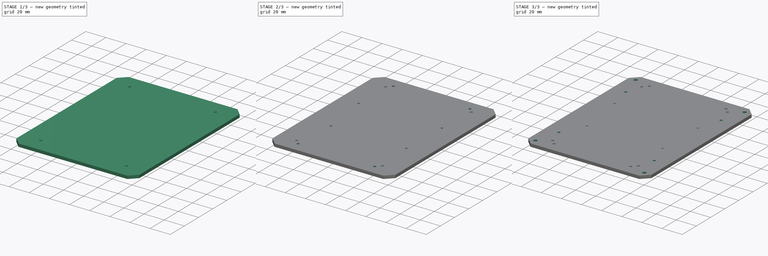
[diagram: build sequence overview — one tinted view per stage of 3, left to right]
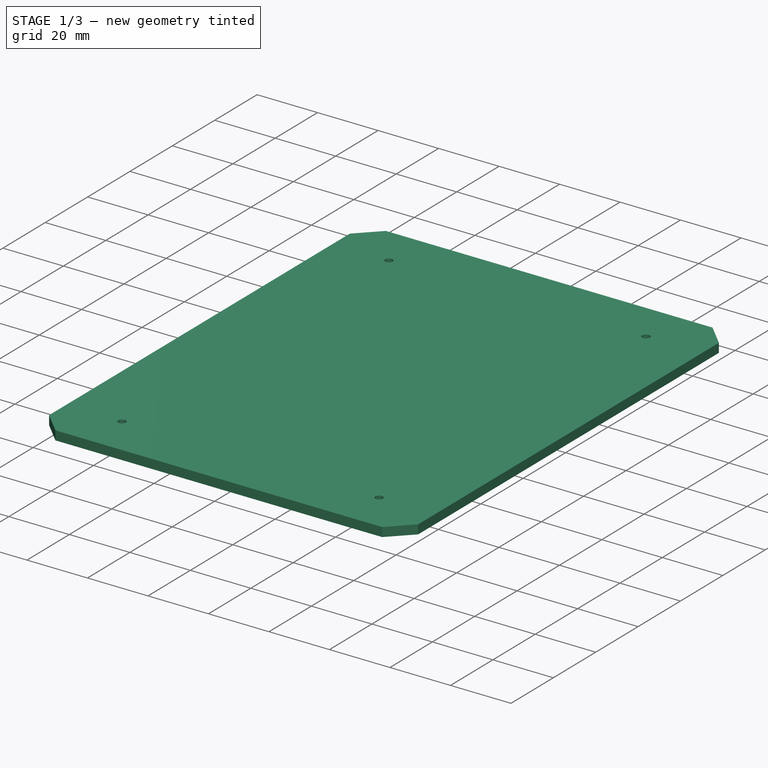
[diagram: stage 1 of 3 — iso view after this stage's code; geometry added in this stage tinted green]
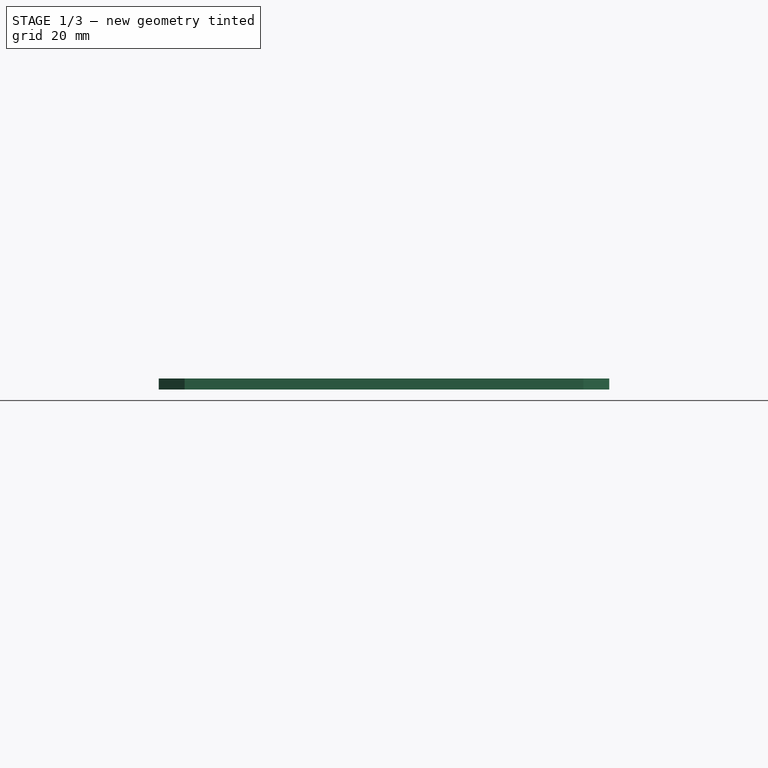
[diagram: stage 1 of 3 — front view after this stage's code; geometry added in this stage tinted green]
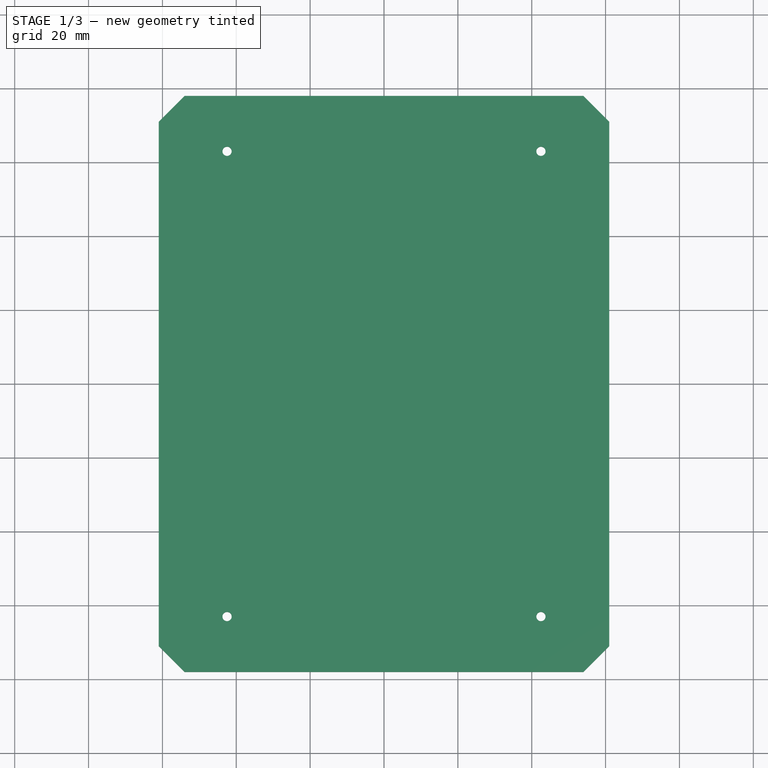
[diagram: stage 1 of 3 — top view after this stage's code; geometry added in this stage tinted green]
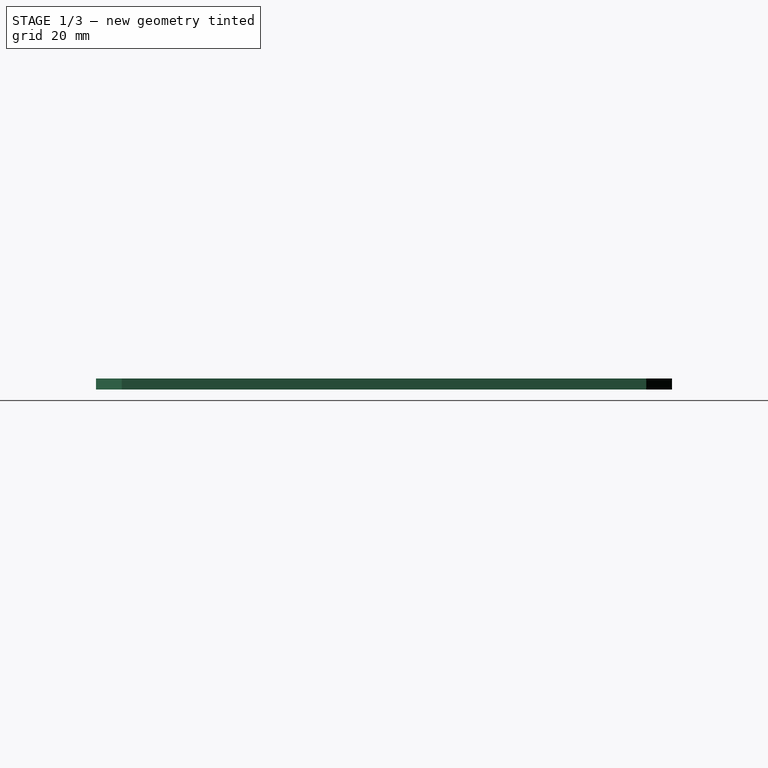
[diagram: stage 1 of 3 — right view after this stage's code; geometry added in this stage tinted green]
FCSTD DOCUMENT  (FreeCAD 0.17R13522 (Git))
Label: Corelia_0_Electronics_plate
License: All rights reserved
LicenseURL: http://en.wikipedia.org/wiki/All_rights_reserved
objects: Sketcher::SketchObject×6, PartDesign::Pocket×5, PartDesign::Pad×1, PartDesign::Body×1, TechDraw::DrawSVGTemplate×1, TechDraw::DrawViewPart×1, TechDraw::DrawPage×1
note: 19 computed .brp shape members not serialized (recipe doc carries the construction recipe); baked Part::Feature solids carry a one-line shape summary decoded from their .brp

FEATURE [Sketcher::SketchObject] Sketch
  MapMode = 5
  Support = -> [XY_Plane]
  sketch-geometry (8):
    g0: LineSegment StartX=-61 StartY=71 StartZ=0 EndX=-54 EndY=78 EndZ=0
    g1: LineSegment StartX=-54 StartY=78 StartZ=0 EndX=54 EndY=78 EndZ=0
    g2: LineSegment StartX=54 StartY=78 StartZ=0 EndX=61 EndY=71 EndZ=0
    g3: LineSegment StartX=61 StartY=71 StartZ=0 EndX=61 EndY=-71 EndZ=0
    g4: LineSegment StartX=61 StartY=-71 StartZ=0 EndX=54 EndY=-78 EndZ=0
    g5: LineSegment StartX=54 StartY=-78 StartZ=0 EndX=-54 EndY=-78 EndZ=0
    g6: LineSegment StartX=-54 StartY=-78 StartZ=0 EndX=-61 EndY=-71 EndZ=0
    g7: LineSegment StartX=-61 StartY=-71 StartZ=0 EndX=-61 EndY=71 EndZ=0
  constraints (24):
    c: Coincident(g0,g1)
    c: Horizontal(g1)
    c: Coincident(g1,g2)
    c: Coincident(g2,g3)
    c: Vertical(g3)
    c: Coincident(g3,g4)
    c: Coincident(g4,g5)
    c: Horizontal(g5)
    c: Coincident(g5,g6)
    c: Coincident(g6,g7)
    c: Coincident(g7,g0)
    c: Vertical(g7)
    c: Equal(g1,g5)
    c: Equal(g7,g3)
    c: Equal(g6,g4)
    c: Equal(g0,g2)
    c: Equal(g0,g6)
    c: Symmetric(g0,g6,g-1)
    c: Symmetric(g5,g0,g-1)
    c: DistanceY(g0,g0) = 7
    c: DistanceX(g0,g0) = 7
    c: DistanceX(g0,g2) = 122
    c: DistanceY(g5,g0) = 156
    c: DistanceX(g0) = -61
FEATURE [PartDesign::Pad] Pad
  Length = 3
  Length2 = 100
  Profile = -> Sketch
  Type = 0
FEATURE [Sketcher::SketchObject] Sketch001
  MapMode = 5
  Placement = pos=(0,0,3) rot=(0,0,1;0rad)
  Support = -> [Pad]
  sketch-geometry (8):
    g0: LineSegment [constr] StartX=-42.5 StartY=63 StartZ=0 EndX=42.5 EndY=63 EndZ=0
    g1: LineSegment [constr] StartX=42.5 StartY=63 StartZ=0 EndX=42.5 EndY=-63 EndZ=0
    g2: LineSegment [constr] StartX=42.5 StartY=-63 StartZ=0 EndX=-42.5 EndY=-63 EndZ=0
    g3: LineSegment [constr] StartX=-42.5 StartY=-63 StartZ=0 EndX=-42.5 EndY=63 EndZ=0
    g4: Circle CenterX=-42.5 CenterY=63 CenterZ=0 NormalX=0 NormalY=0 NormalZ=1 AngleXU=0 Radius=1.25
    g5: Circle CenterX=42.5 CenterY=63 CenterZ=0 NormalX=0 NormalY=0 NormalZ=1 AngleXU=0 Radius=1.25
    g6: Circle CenterX=-42.5 CenterY=-63 CenterZ=0 NormalX=0 NormalY=0 NormalZ=1 AngleXU=0 Radius=1.25
    g7: Circle CenterX=42.5 CenterY=-63 CenterZ=0 NormalX=0 NormalY=0 NormalZ=1 AngleXU=0 Radius=1.25
  constraints (20):
    c: Coincident(g0,g1)
    c: Coincident(g1,g2)
    c: Coincident(g2,g3)
    c: Coincident(g3,g0)
    c: Horizontal(g0)
    c: Horizontal(g2)
    c: Vertical(g1)
    c: Vertical(g3)
    c: Coincident(g4,g0)
    c: Coincident(g5,g0)
    c: Coincident(g6,g2)
    c: Coincident(g7,g1)
    c: Equal(g5,g4)
    c: Equal(g4,g6)
    c: Equal(g6,g7)
    c: Radius(g4) = 1.25
    c: Symmetric(g0,g2,g-1)
    c: Symmetric(g2,g1,g-2)
    c: DistanceY(g3,g3) = 126
    c: DistanceX(g0,g0) = 85
FEATURE [PartDesign::Pocket] Pocket  label="C0_Baseplate-holes"
  BaseFeature = -> Pad
  Length = 5
  Length2 = 100
  Profile = -> Sketch001
  Type = 1
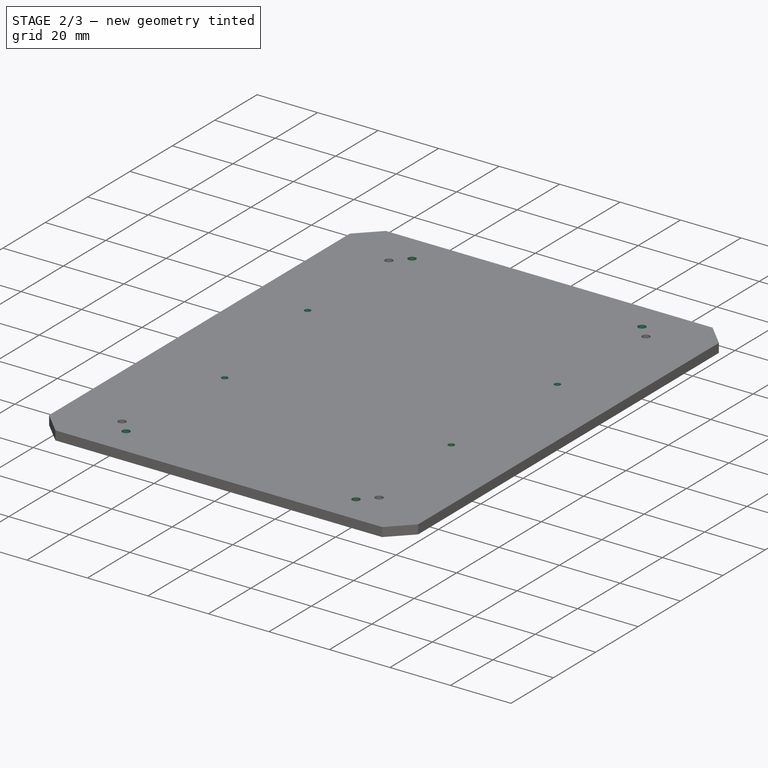
[diagram: stage 2 of 3 — iso view after this stage's code; geometry added in this stage tinted green]
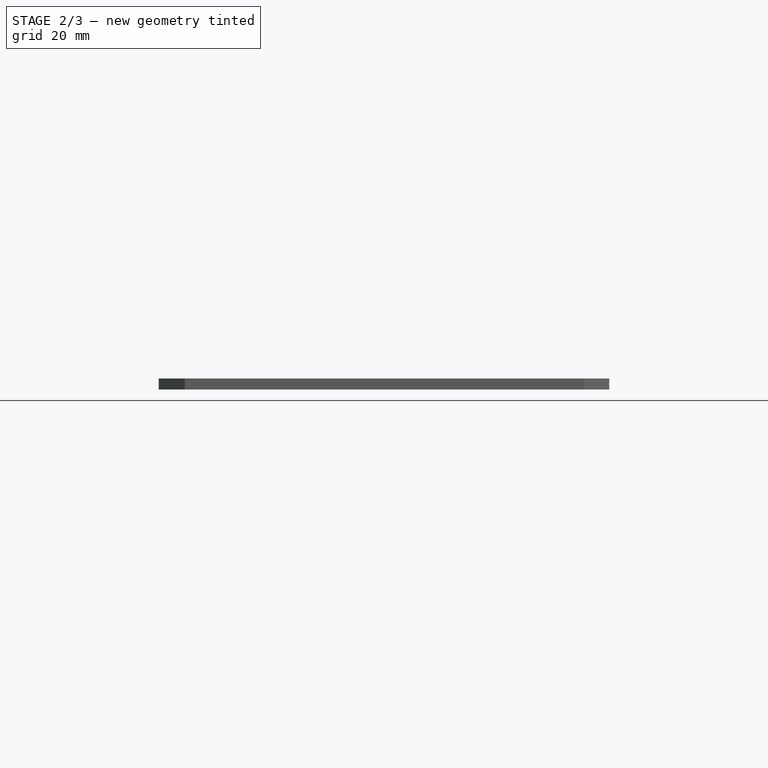
[diagram: stage 2 of 3 — front view after this stage's code; geometry added in this stage tinted green]
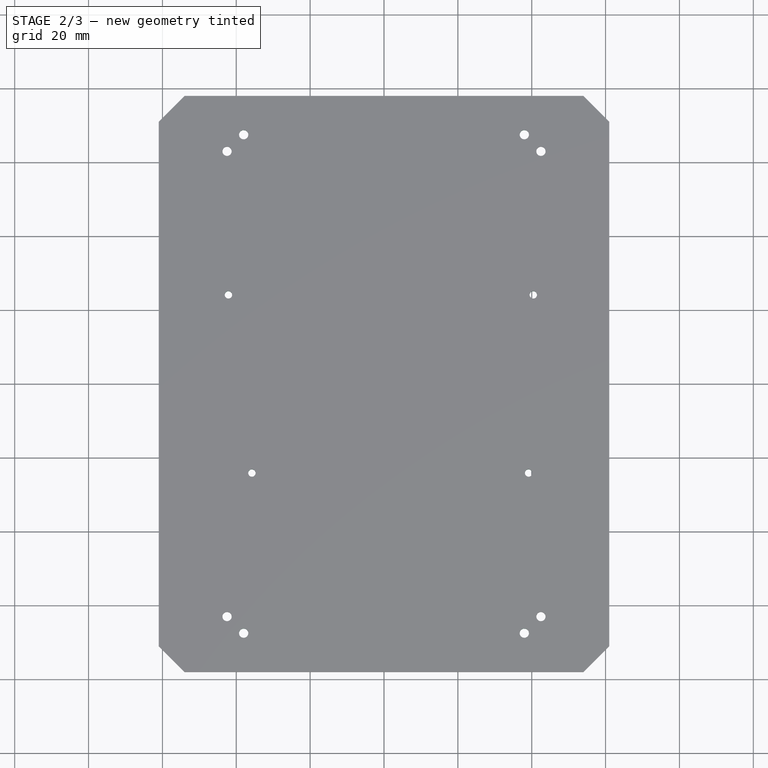
[diagram: stage 2 of 3 — top view after this stage's code; geometry added in this stage tinted green]
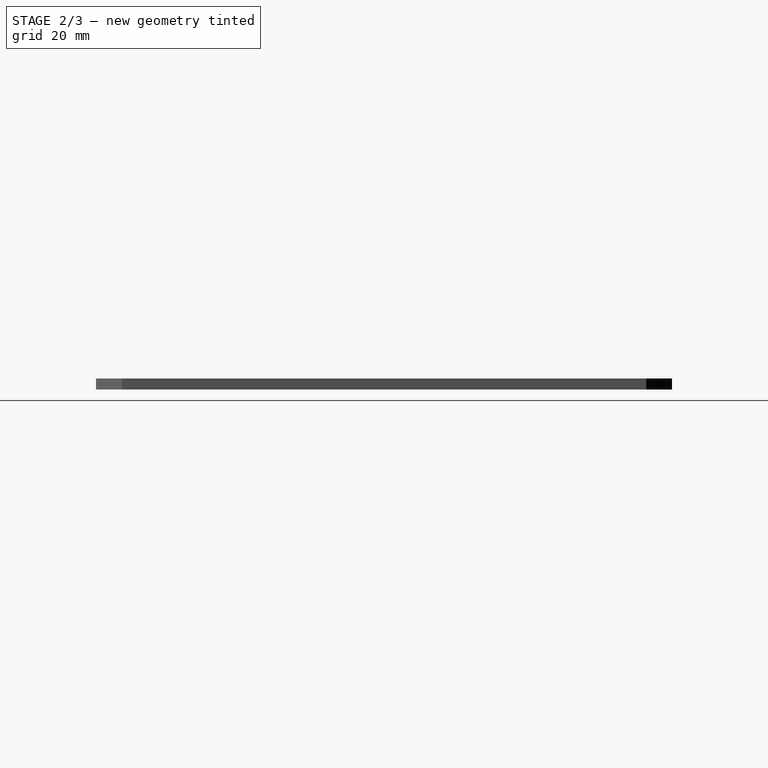
[diagram: stage 2 of 3 — right view after this stage's code; geometry added in this stage tinted green]
FEATURE [Sketcher::SketchObject] Sketch002
  MapMode = 5
  Placement = pos=(0,0,3) rot=(0,0,1;0rad)
  Support = -> [Pocket]
  sketch-geometry (8):
    g0: LineSegment [constr] StartX=-38 StartY=67.5 StartZ=0 EndX=38 EndY=67.5 EndZ=0
    g1: LineSegment [constr] StartX=38 StartY=67.5 StartZ=0 EndX=38 EndY=-67.5 EndZ=0
    g2: LineSegment [constr] StartX=38 StartY=-67.5 StartZ=0 EndX=-38 EndY=-67.5 EndZ=0
    g3: LineSegment [constr] StartX=-38 StartY=-67.5 StartZ=0 EndX=-38 EndY=67.5 EndZ=0
    g4: Circle CenterX=-38 CenterY=67.5 CenterZ=0 NormalX=0 NormalY=0 NormalZ=1 AngleXU=0 Radius=1.25
    g5: Circle CenterX=38 CenterY=67.5 CenterZ=0 NormalX=0 NormalY=0 NormalZ=1 AngleXU=0 Radius=1.25
    g6: Circle CenterX=38 CenterY=-67.5 CenterZ=0 NormalX=0 NormalY=0 NormalZ=1 AngleXU=0 Radius=1.25
    g7: Circle CenterX=-38 CenterY=-67.5 CenterZ=0 NormalX=0 NormalY=0 NormalZ=1 AngleXU=0 Radius=1.25
  constraints (20):
    c: Coincident(g0,g1)
    c: Coincident(g1,g2)
    c: Coincident(g2,g3)
    c: Coincident(g3,g0)
    c: Horizontal(g0)
    c: Horizontal(g2)
    c: Vertical(g1)
    c: Vertical(g3)
    c: Coincident(g4,g0)
    c: Coincident(g5,g0)
    c: Coincident(g6,g1)
    c: Coincident(g7,g2)
    c: Equal(g4,g7)
    c: Equal(g7,g6)
    c: Equal(g6,g5)
    c: Symmetric(g0,g0,g-2)
    c: Symmetric(g0,g2,g-1)
    c: DistanceX(g0,g0) = 76
    c: DistanceY(g3,g3) = 135
    c: Radius(g4) = 1.25
FEATURE [PartDesign::Pocket] Pocket001  label="MKS_GEN-holes"
  BaseFeature = -> Pocket
  Length = 5
  Length2 = 100
  Profile = -> Sketch002
  Type = 1
FEATURE [Sketcher::SketchObject] Sketch003
  MapMode = 5
  Placement = pos=(0,0,3) rot=(0,0,1;0rad)
  Support = -> [Pocket001]
  sketch-geometry (12):
    g0: LineSegment [constr] StartX=54.4 StartY=26.67 StartZ=0 EndX=-45.4 EndY=26.67 EndZ=0
    g1: LineSegment [constr] StartX=-45.4 StartY=26.67 StartZ=0 EndX=-45.4 EndY=24.13 EndZ=0
    g2: LineSegment [constr] StartX=-45.4 StartY=24.13 StartZ=0 EndX=-47.2 EndY=22.33 EndZ=0
    g3: LineSegment [constr] StartX=-47.2 StartY=22.33 StartZ=0 EndX=-47.2 EndY=-10.97 EndZ=0
    g4: LineSegment [constr] StartX=-47.2 StartY=-10.97 StartZ=0 EndX=-43.5 EndY=-14.67 EndZ=0
    g5: LineSegment [constr] StartX=-43.5 StartY=-14.67 StartZ=0 EndX=-43.5 EndY=-26.67 EndZ=0
    g6: LineSegment [constr] StartX=-43.5 StartY=-26.67 StartZ=0 EndX=54.4 EndY=-26.67 EndZ=0
    g7: LineSegment [constr] StartX=54.4 StartY=-26.67 StartZ=0 EndX=54.4 EndY=26.67 EndZ=0
    g8: Circle CenterX=-42.12 CenterY=24.13 CenterZ=0 NormalX=0 NormalY=0 NormalZ=1 AngleXU=0 Radius=1
    g9: Circle CenterX=-35.77 CenterY=-24.13 CenterZ=0 NormalX=0 NormalY=0 NormalZ=1 AngleXU=0 Radius=1
    g10: Circle CenterX=40.43 CenterY=24.13 CenterZ=0 NormalX=0 NormalY=0 NormalZ=1 AngleXU=0 Radius=1
    g11: Circle CenterX=39.16 CenterY=-24.13 CenterZ=0 NormalX=0 NormalY=0 NormalZ=1 AngleXU=0 Radius=1
  constraints (36):
    c: Horizontal(g0)
    c: Coincident(g0,g1)
    c: Coincident(g1,g2)
    c: Coincident(g2,g3)
    c: Vertical(g3)
    c: Coincident(g3,g4)
    c: Coincident(g4,g5)
    c: Vertical(g5)
    c: Coincident(g5,g6)
    c: Horizontal(g6)
    c: Coincident(g6,g7)
    c: Coincident(g7,g0)
    c: Vertical(g7)
    c: Vertical(g1)
    c: DistanceY(g1,g1) = 2.54
    c: DistanceY(g2,g2) = 1.8
    c: DistanceX(g2,g2) = 1.8
    c: DistanceY(g4,g4) = 3.7
    c: DistanceX(g4,g4) = 3.7
    c: DistanceY(g5,g5) = 12
    c: DistanceX(g2,g0) = 101.6
    c: DistanceY(g5,g0) = 53.34
    c: Equal(g9,g8)
    c: Equal(g8,g10)
    c: Equal(g10,g11)
    c: Radius(g8) = 1
    c: DistanceY(g11,g0) = 50.8
    c: DistanceX(g11,g6) = 15.24
    c: DistanceX(g10,g0) = 13.97
    c: DistanceY(g10,g0) = 2.54
    c: DistanceX(g9,g6) = 90.17
    c: DistanceY(g9,g0) = 50.8
    c: DistanceX(g8,g0) = 96.52
    c: DistanceY(g8,g0) = 2.54
    c: DistanceY(g6) = -26.67
    c: DistanceX(g6) = 54.4
FEATURE [PartDesign::Pocket] Pocket002  label="Ard_Mega-holes"
  BaseFeature = -> Pocket001
  Length = 5
  Length2 = 100
  Profile = -> Sketch003
  Type = 1
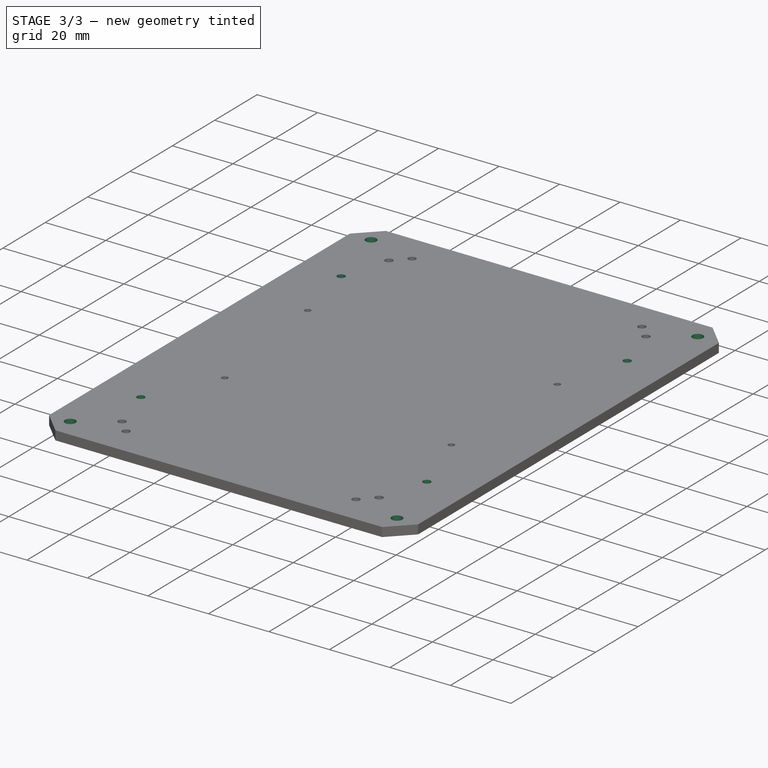
[diagram: stage 3 of 3 — iso view after this stage's code; geometry added in this stage tinted green]
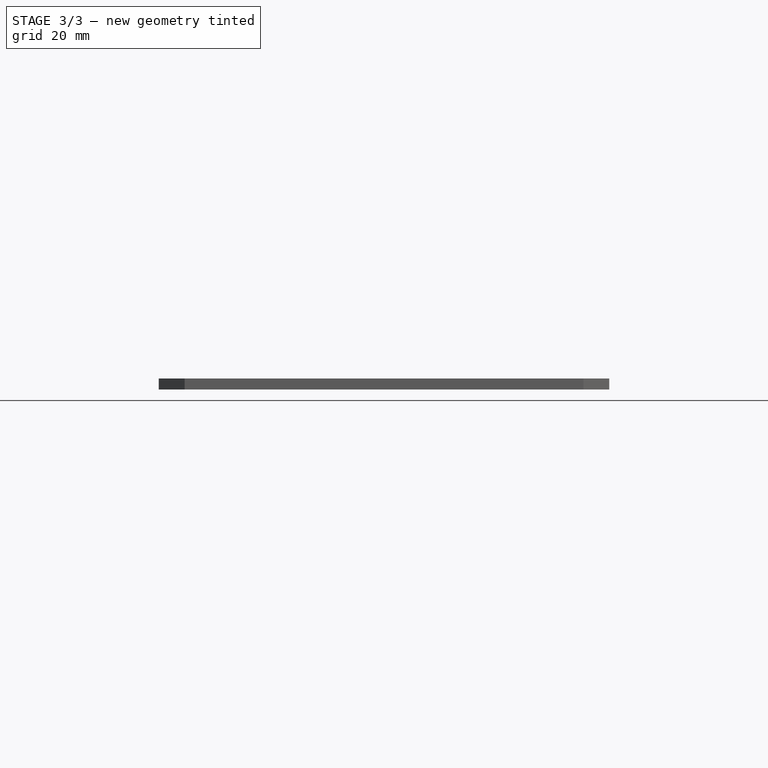
[diagram: stage 3 of 3 — front view after this stage's code; geometry added in this stage tinted green]
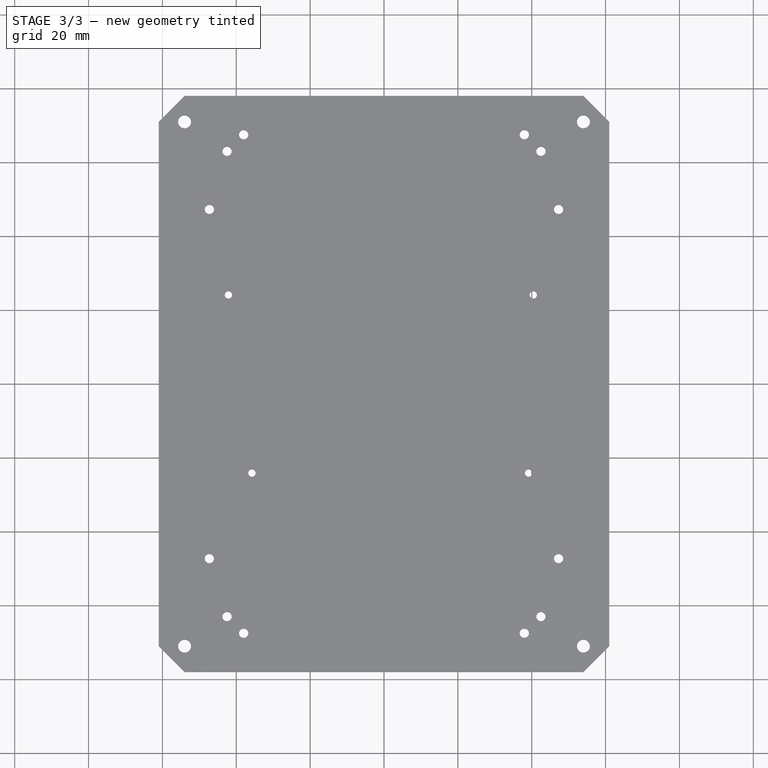
[diagram: stage 3 of 3 — top view after this stage's code; geometry added in this stage tinted green]
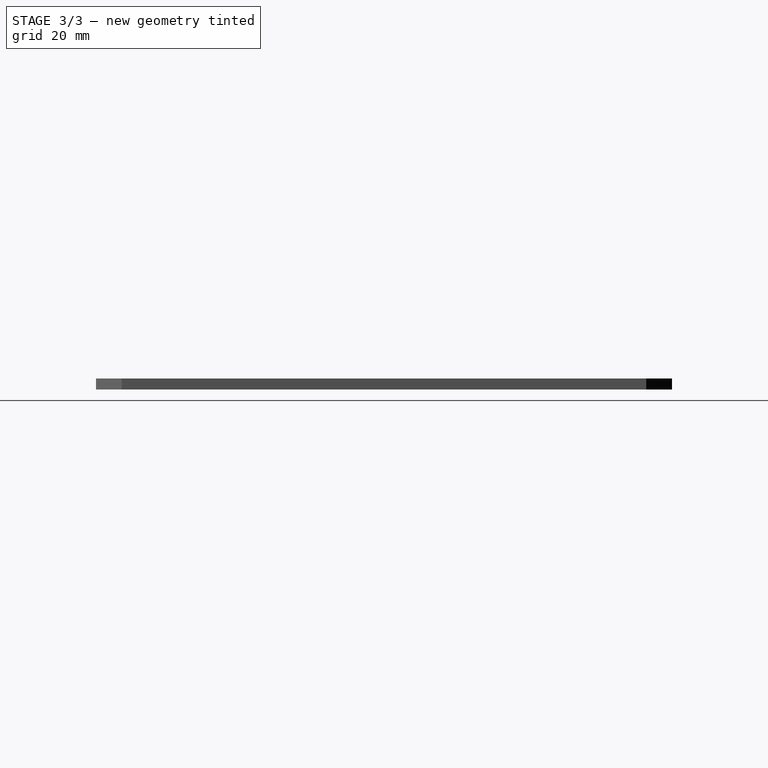
[diagram: stage 3 of 3 — right view after this stage's code; geometry added in this stage tinted green]
FEATURE [Sketcher::SketchObject] Sketch004
  MapMode = 5
  Placement = pos=(0,0,3) rot=(0,0,1;0rad)
  Support = -> [Pocket002]
  sketch-geometry (8):
    g0: LineSegment [constr] StartX=-47.28 StartY=47.28 StartZ=0 EndX=47.28 EndY=47.28 EndZ=0
    g1: LineSegment [constr] StartX=47.28 StartY=47.28 StartZ=0 EndX=47.28 EndY=-47.28 EndZ=0
    g2: LineSegment [constr] StartX=47.28 StartY=-47.28 StartZ=0 EndX=-47.28 EndY=-47.28 EndZ=0
    g3: LineSegment [constr] StartX=-47.28 StartY=-47.28 StartZ=0 EndX=-47.28 EndY=47.28 EndZ=0
    g4: Circle CenterX=-47.28 CenterY=47.28 CenterZ=0 NormalX=0 NormalY=0 NormalZ=1 AngleXU=0 Radius=1.25
    g5: Circle CenterX=47.28 CenterY=47.28 CenterZ=0 NormalX=0 NormalY=0 NormalZ=1 AngleXU=0 Radius=1.25
    g6: Circle CenterX=-47.28 CenterY=-47.28 CenterZ=0 NormalX=0 NormalY=0 NormalZ=1 AngleXU=0 Radius=1.25
    g7: Circle CenterX=47.28 CenterY=-47.28 CenterZ=0 NormalX=0 NormalY=0 NormalZ=1 AngleXU=0 Radius=1.25
  constraints (20):
    c: Coincident(g0,g1)
    c: Coincident(g1,g2)
    c: Coincident(g2,g3)
    c: Coincident(g3,g0)
    c: Horizontal(g0)
    c: Horizontal(g2)
    c: Vertical(g1)
    c: Vertical(g3)
    c: Coincident(g4,g0)
    c: Coincident(g5,g0)
    c: Coincident(g6,g2)
    c: Coincident(g7,g1)
    c: Equal(g4,g6)
    c: Equal(g6,g5)
    c: Equal(g5,g7)
    c: Radius(g4) = 1.25
    c: DistanceX(g0,g0) = 94.56
    c: DistanceY(g3,g3) = 94.56
    c: DistanceX(g0) = 47.28
    c: DistanceY(g0) = 47.28
FEATURE [PartDesign::Pocket] Pocket003  label="KFB-holes"
  BaseFeature = -> Pocket002
  Length = 5
  Length2 = 100
  Profile = -> Sketch004
  Type = 1
FEATURE [Sketcher::SketchObject] Sketch005
  MapMode = 5
  Placement = pos=(0,0,3) rot=(0,0,1;0rad)
  Support = -> [Pocket003]
  sketch-geometry (8):
    g0: LineSegment [constr] StartX=-54 StartY=71 StartZ=0 EndX=54 EndY=71 EndZ=0
    g1: LineSegment [constr] StartX=54 StartY=71 StartZ=0 EndX=54 EndY=-71 EndZ=0
    g2: LineSegment [constr] StartX=54 StartY=-71 StartZ=0 EndX=-54 EndY=-71 EndZ=0
    g3: LineSegment [constr] StartX=-54 StartY=-71 StartZ=0 EndX=-54 EndY=71 EndZ=0
    g4: Circle CenterX=-54 CenterY=71 CenterZ=0 NormalX=0 NormalY=0 NormalZ=1 AngleXU=0 Radius=1.75
    g5: Circle CenterX=54 CenterY=71 CenterZ=0 NormalX=0 NormalY=0 NormalZ=1 AngleXU=0 Radius=1.75
    g6: Circle CenterX=-54 CenterY=-71 CenterZ=0 NormalX=0 NormalY=0 NormalZ=1 AngleXU=0 Radius=1.75
    g7: Circle CenterX=54 CenterY=-71 CenterZ=0 NormalX=0 NormalY=0 NormalZ=1 AngleXU=0 Radius=1.75
  constraints (20):
    c: Coincident(g0,g1)
    c: Coincident(g1,g2)
    c: Coincident(g2,g3)
    c: Coincident(g3,g0)
    c: Horizontal(g0)
    c: Horizontal(g2)
    c: Vertical(g1)
    c: Vertical(g3)
    c: Coincident(g4,g0)
    c: Coincident(g5,g0)
    c: Coincident(g6,g2)
    c: Coincident(g7,g1)
    c: Equal(g4,g6)
    c: Equal(g6,g7)
    c: Equal(g7,g5)
    c: Radius(g4) = 1.75
    c: DistanceX(g0,g0) = 108
    c: Symmetric(g0,g0,g-2)
    c: Symmetric(g0,g2,g-1)
    c: DistanceY(g3,g3) = 142
FEATURE [PartDesign::Pocket] Pocket004
  BaseFeature = -> Pocket003
  Length = 5
  Length2 = 100
  Profile = -> Sketch005
  Type = 1
FEATURE [PartDesign::Body] Body
  Group = -> [Sketch,Pad,Sketch001,Pocket,Sketch002,Pocket001,Sketch003,Pocket002,Sketch004,Pocket003,Sketch005,Pocket004]
  Origin = -> Origin
  Tip = -> Pocket004
FEATURE [TechDraw::DrawSVGTemplate] Template
  Height = 210
  Orientation = 1
  Width = 297
FEATURE [TechDraw::DrawViewPart] View
  CoarseView = false
  Direction = (0,0,1)
  Focus = 100
  HardHidden = false
  IsoCount = 0
  IsoHidden = false
  IsoVisible = false
  LockPosition = false
  Perspective = false
  Rotation = 0
  ScaleType = 0
  SeamHidden = false
  SeamVisible = false
  SmoothHidden = false
  SmoothVisible = false
  Source = -> [Pocket004]
  X = 148.5
  Y = 105
FEATURE [TechDraw::DrawPage] Page
  KeepUpdated = true
  ProjectionType = 0
  Template = -> Template
  Views = -> [View]
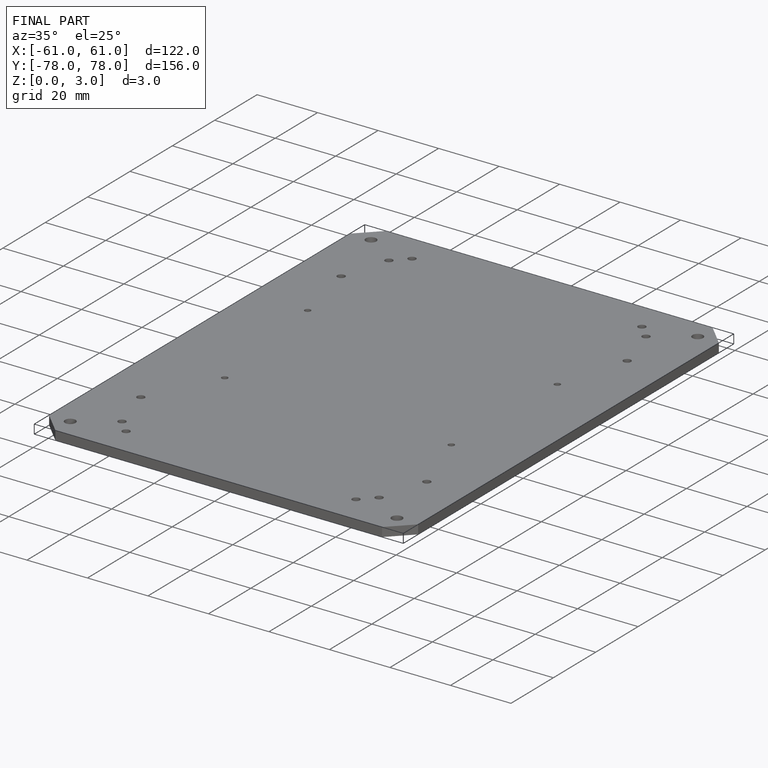
[diagram: finished part — iso view with bounding-box wireframe]
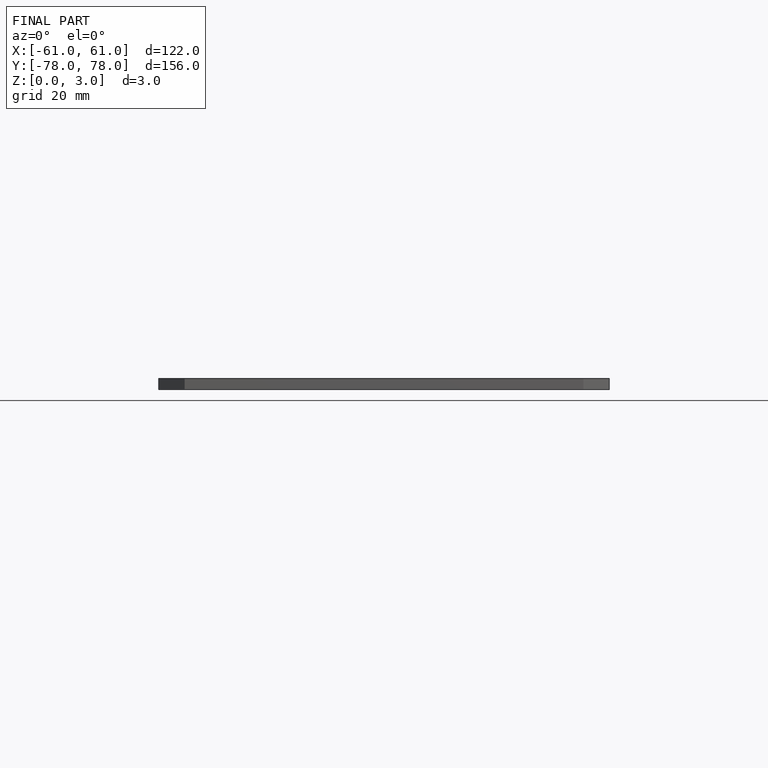
[diagram: finished part — front view with bounding-box wireframe]
